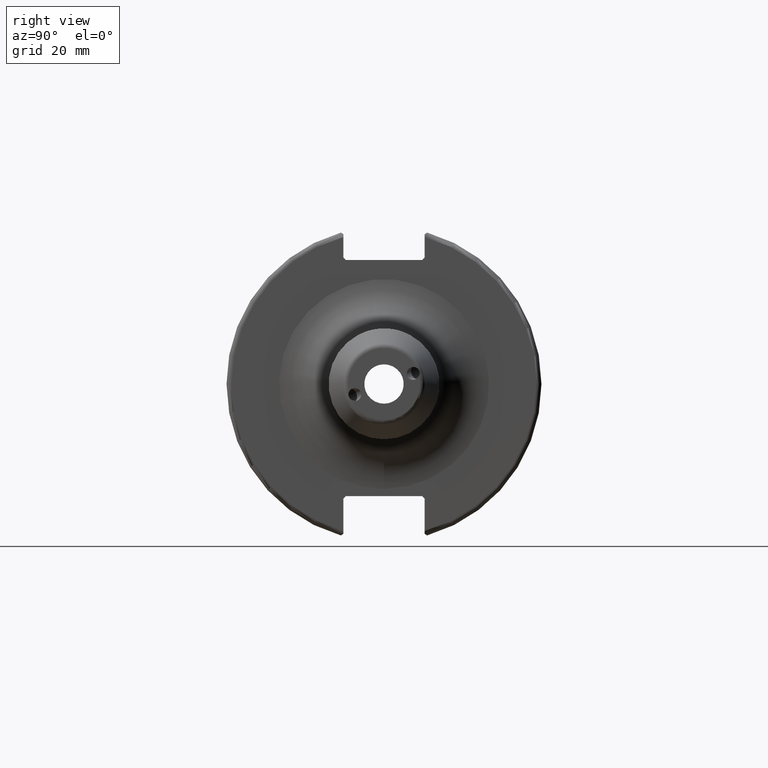
[diagram: clean part render]
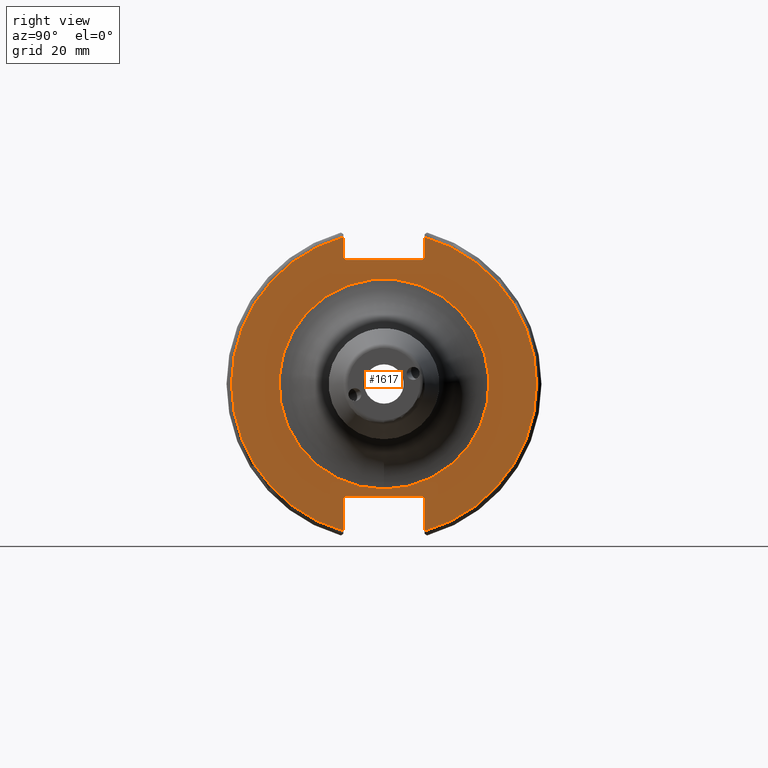
[diagram: same view with one face highlighted and labeled with its STEP entity id]
A machine part, right view. The second image highlights one B-rep face of the part: STEP entity #1617.
In plain terms, the highlighted planar face has unit normal (1, 0, 0).
Its self-contained STEP definition (entity closure, byte-faithful):
#51=FACE_BOUND('',#297,.T.);
#66=PLANE('',#1755);
#119=CIRCLE('',#1754,21.176);
#120=CIRCLE('',#1756,30.75);
#121=CIRCLE('',#1757,30.75);
#200=FACE_OUTER_BOUND('',#296,.T.);
#296=EDGE_LOOP('',(#1156,#1157,#1158,#1159,#1160,#1161,#1162,#1163,#1164,
#1165,#1166,#1167));
#297=EDGE_LOOP('',(#1168));
#396=LINE('',#2746,#495);
#397=LINE('',#2748,#496);
#398=LINE('',#2750,#497);
#399=LINE('',#2752,#498);
#400=LINE('',#2754,#499);
#401=LINE('',#2758,#500);
#402=LINE('',#2760,#501);
#403=LINE('',#2762,#502);
#404=LINE('',#2764,#503);
#405=LINE('',#2765,#504);
#495=VECTOR('',#2001,10.);
#496=VECTOR('',#2002,10.);
#497=VECTOR('',#2003,10.);
#498=VECTOR('',#2004,10.);
#499=VECTOR('',#2005,10.);
#500=VECTOR('',#2008,10.);
#501=VECTOR('',#2009,10.);
#502=VECTOR('',#2010,10.);
#503=VECTOR('',#2011,10.);
#504=VECTOR('',#2012,10.);
#678=VERTEX_POINT('',#2738);
#679=VERTEX_POINT('',#2742);
#680=VERTEX_POINT('',#2743);
#681=VERTEX_POINT('',#2745);
#682=VERTEX_POINT('',#2747);
#683=VERTEX_POINT('',#2749);
#684=VERTEX_POINT('',#2751);
#685=VERTEX_POINT('',#2753);
#686=VERTEX_POINT('',#2755);
#687=VERTEX_POINT('',#2757);
#688=VERTEX_POINT('',#2759);
#689=VERTEX_POINT('',#2761);
#690=VERTEX_POINT('',#2763);
#861=EDGE_CURVE('',#678,#678,#119,.T.);
#862=EDGE_CURVE('',#679,#680,#120,.T.);
#863=EDGE_CURVE('',#679,#681,#396,.T.);
#864=EDGE_CURVE('',#682,#681,#397,.T.);
#865=EDGE_CURVE('',#682,#683,#398,.T.);
#866=EDGE_CURVE('',#684,#683,#399,.T.);
#867=EDGE_CURVE('',#684,#685,#400,.T.);
#868=EDGE_CURVE('',#686,#685,#121,.T.);
#869=EDGE_CURVE('',#686,#687,#401,.T.);
#870=EDGE_CURVE('',#688,#687,#402,.T.);
#871=EDGE_CURVE('',#688,#689,#403,.T.);
#872=EDGE_CURVE('',#690,#689,#404,.T.);
#873=EDGE_CURVE('',#690,#680,#405,.T.);
#1156=ORIENTED_EDGE('',*,*,#862,.F.);
#1157=ORIENTED_EDGE('',*,*,#863,.T.);
#1158=ORIENTED_EDGE('',*,*,#864,.F.);
#1159=ORIENTED_EDGE('',*,*,#865,.T.);
#1160=ORIENTED_EDGE('',*,*,#866,.F.);
#1161=ORIENTED_EDGE('',*,*,#867,.T.);
#1162=ORIENTED_EDGE('',*,*,#868,.F.);
#1163=ORIENTED_EDGE('',*,*,#869,.T.);
#1164=ORIENTED_EDGE('',*,*,#870,.F.);
#1165=ORIENTED_EDGE('',*,*,#871,.T.);
#1166=ORIENTED_EDGE('',*,*,#872,.F.);
#1167=ORIENTED_EDGE('',*,*,#873,.T.);
#1168=ORIENTED_EDGE('',*,*,#861,.F.);
#1617=ADVANCED_FACE('',(#200,#51),#66,.T.);
#1754=AXIS2_PLACEMENT_3D('',#2740,#1995,#1996);
#1755=AXIS2_PLACEMENT_3D('',#2741,#1997,#1998);
#1756=AXIS2_PLACEMENT_3D('',#2744,#1999,#2000);
#1757=AXIS2_PLACEMENT_3D('',#2756,#2006,#2007);
#1995=DIRECTION('center_axis',(1.,0.,0.));
#1996=DIRECTION('ref_axis',(0.,1.22464679914735E-16,-1.));
#1997=DIRECTION('center_axis',(1.,0.,0.));
#1998=DIRECTION('ref_axis',(0.,0.,-1.));
#1999=DIRECTION('center_axis',(-1.,0.,0.));
#2000=DIRECTION('ref_axis',(0.,1.,-6.12323399573677E-17));
#2001=DIRECTION('',(0.,0.,-1.));
#2002=DIRECTION('',(0.,0.707106781186549,0.707106781186546));
#2003=DIRECTION('',(0.,-1.,0.));
#2004=DIRECTION('',(0.,0.70710678118655,-0.707106781186545));
#2005=DIRECTION('',(0.,0.,1.));
#2006=DIRECTION('center_axis',(-1.,0.,0.));
#2007=DIRECTION('ref_axis',(0.,-1.,1.60812264967664E-16));
#2008=DIRECTION('',(0.,0.,1.));
#2009=DIRECTION('',(0.,-0.707106781186549,-0.707106781186546));
#2010=DIRECTION('',(0.,1.,0.));
#2011=DIRECTION('',(0.,-0.707106781186549,0.707106781186546));
#2012=DIRECTION('',(0.,0.,-1.));
#2738=CARTESIAN_POINT('',(19.05,-2.59331206187444E-15,-21.176));
#2740=CARTESIAN_POINT('Origin',(19.05,0.,0.));
#2741=CARTESIAN_POINT('Origin',(19.05,0.,0.));
#2742=CARTESIAN_POINT('',(19.05,8.19,29.6392712461019));
#2743=CARTESIAN_POINT('',(19.05,8.19,-29.6392712461019));
#2744=CARTESIAN_POINT('Origin',(19.05,0.,0.));
#2745=CARTESIAN_POINT('',(19.05,8.19,25.5));
#2746=CARTESIAN_POINT('',(19.05,8.19,12.5));
#2747=CARTESIAN_POINT('',(19.05,7.69,25.));
#2748=CARTESIAN_POINT('',(19.05,-0.35750000000001,16.9525));
#2749=CARTESIAN_POINT('',(19.05,-7.69,25.));
#2750=CARTESIAN_POINT('',(19.05,0.,25.));
#2751=CARTESIAN_POINT('',(19.05,-8.19,25.5));
#2752=CARTESIAN_POINT('',(19.05,0.357500000000014,16.9525));
#2753=CARTESIAN_POINT('',(19.05,-8.19,29.6392712461019));
#2754=CARTESIAN_POINT('',(19.05,-8.19,12.5));
#2755=CARTESIAN_POINT('',(19.05,-8.19,-29.6392712461019));
#2756=CARTESIAN_POINT('Origin',(19.05,0.,0.));
#2757=CARTESIAN_POINT('',(19.05,-8.19,-23.1));
#2758=CARTESIAN_POINT('',(19.05,-8.19,-11.3));
#2759=CARTESIAN_POINT('',(19.05,-7.69,-22.6));
#2760=CARTESIAN_POINT('',(19.05,-0.242499999999991,-15.1525));
#2761=CARTESIAN_POINT('',(19.05,7.69,-22.6));
#2762=CARTESIAN_POINT('',(19.05,-2.77555756156289E-16,-22.6));
#2763=CARTESIAN_POINT('',(19.05,8.19,-23.1));
#2764=CARTESIAN_POINT('',(19.05,0.242499999999989,-15.1525));
#2765=CARTESIAN_POINT('',(19.05,8.19,-11.3));